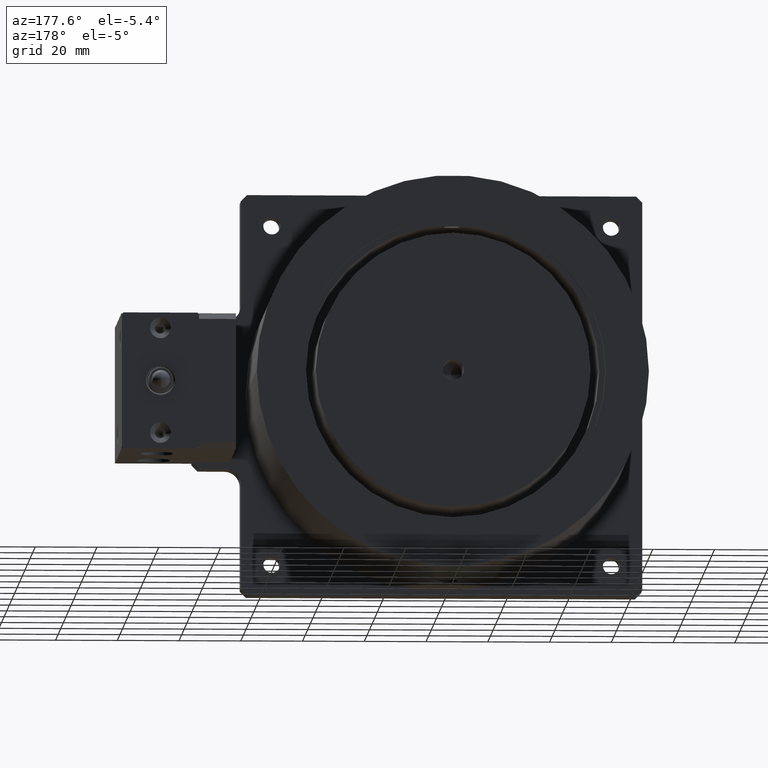
[diagram: clean part render]
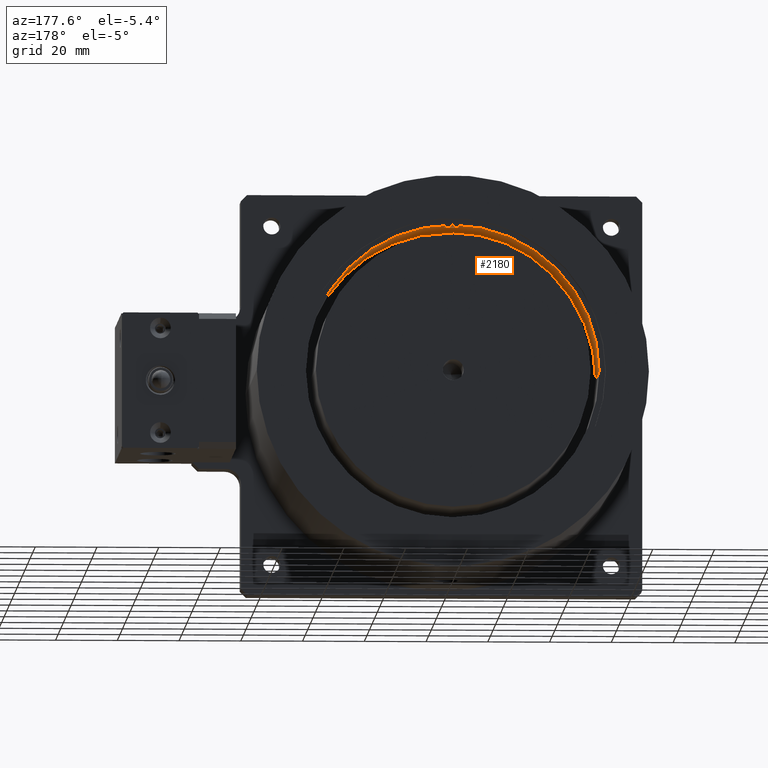
[diagram: same view with one face highlighted and labeled with its STEP entity id]
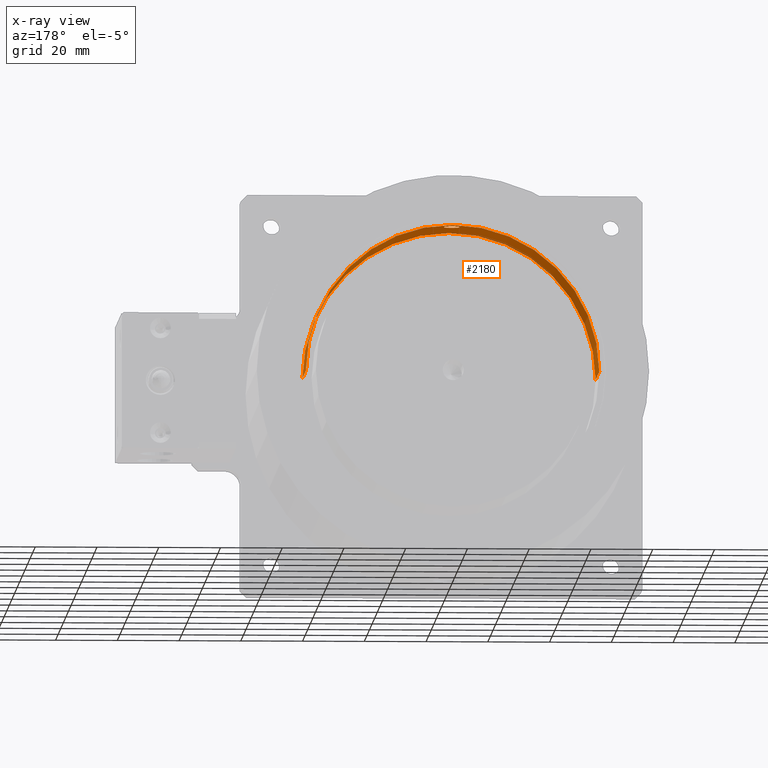
[diagram: x-ray of the same camera — body ghosted, the highlighted face saturated]
A machine part, auxiliary view. The second image highlights one B-rep face of the part: STEP entity #2180.
The next image is the same camera in x-ray: the body ghosted, the highlighted face saturated — about 5% of this face is hidden behind the body in this view.
In plain terms, the highlighted cylindrical surface (partial cylindrical patch) has radius 47.5 mm, axis along (0, 1, 0).
Its self-contained STEP definition (entity closure, byte-faithful):
#884=DIRECTION('',(0.E0,1.E0,0.E0));
#885=VECTOR('',#884,2.8E1);
#886=CARTESIAN_POINT('',(-4.75E1,-8.5E1,0.E0));
#887=LINE('',#886,#885);
#891=CARTESIAN_POINT('',(2.508413296264E0,-7.8E1,-4.743372073467E1));
#892=CARTESIAN_POINT('',(2.508413296264E0,-7.817582763835E1,-4.743372073467E1));
#893=CARTESIAN_POINT('',(2.475526233331E0,-7.851996342638E1,-4.743547884619E1));
#894=CARTESIAN_POINT('',(2.324726319821E0,-7.902910322056E1,-4.744321091931E1));
#895=CARTESIAN_POINT('',(2.085194664290E0,-7.948469693190E1,-4.745447933559E1));
#896=CARTESIAN_POINT('',(1.767072350113E0,-7.988213849062E1,-4.746756895905E1));
#897=CARTESIAN_POINT('',(1.373595345744E0,-8.021131796930E1,-4.748075846705E1));
#898=CARTESIAN_POINT('',(9.348812714220E-1,-8.044720257792E1,
-4.749151330589E1));
#899=CARTESIAN_POINT('',(4.753855434107E-1,-8.058713175158E1,
-4.749839111333E1));
#900=CARTESIAN_POINT('',(-2.557479472378E-4,-8.063462147566E1,
-4.750080987877E1));
#901=CARTESIAN_POINT('',(-4.781904371591E-1,-8.058670494261E1,
-4.749836934591E1));
#902=CARTESIAN_POINT('',(-9.373869191151E-1,-8.044604585704E1,
-4.749145833669E1));
#903=CARTESIAN_POINT('',(-1.374188237389E0,-8.021075328851E1,
-4.748073658710E1));
#904=CARTESIAN_POINT('',(-1.767020711891E0,-7.988227829570E1,
-4.746757257064E1));
#905=CARTESIAN_POINT('',(-2.086320008838E0,-7.948315693708E1,
-4.745443088980E1));
#906=CARTESIAN_POINT('',(-2.325202540855E0,-7.902758139728E1,
-4.744318595784E1));
#907=CARTESIAN_POINT('',(-2.475315337754E0,-7.852063692136E1,
-4.743548985655E1));
#908=CARTESIAN_POINT('',(-2.508413296264E0,-7.817617094847E1,
-4.743372073467E1));
#909=CARTESIAN_POINT('',(-2.508413296264E0,-7.8E1,-4.743372073467E1));
#914=CARTESIAN_POINT('',(-2.508413296264E0,-7.8E1,-4.743372073467E1));
#915=CARTESIAN_POINT('',(-2.508413296264E0,-7.782417236165E1,
-4.743372073467E1));
#916=CARTESIAN_POINT('',(-2.475526233331E0,-7.748003657362E1,
-4.743547884619E1));
#917=CARTESIAN_POINT('',(-2.324726319821E0,-7.697089677944E1,
-4.744321091931E1));
#918=CARTESIAN_POINT('',(-2.085194664290E0,-7.651530306810E1,
-4.745447933559E1));
#919=CARTESIAN_POINT('',(-1.767072350113E0,-7.611786150938E1,
-4.746756895905E1));
#920=CARTESIAN_POINT('',(-1.373595345744E0,-7.578868203070E1,
-4.748075846705E1));
#921=CARTESIAN_POINT('',(-9.348812714219E-1,-7.555279742208E1,
-4.749151330589E1));
#922=CARTESIAN_POINT('',(-4.753855434107E-1,-7.541286824842E1,
-4.749839111333E1));
#923=CARTESIAN_POINT('',(2.557479472848E-4,-7.536537852434E1,
-4.750080987877E1));
#924=CARTESIAN_POINT('',(4.781904371590E-1,-7.541329505739E1,
-4.749836934591E1));
#925=CARTESIAN_POINT('',(9.373869191151E-1,-7.555395414296E1,
-4.749145833669E1));
#926=CARTESIAN_POINT('',(1.374188237389E0,-7.578924671149E1,-4.748073658710E1));
#927=CARTESIAN_POINT('',(1.767020711891E0,-7.611772170430E1,-4.746757257064E1));
#928=CARTESIAN_POINT('',(2.086320008838E0,-7.651684306292E1,-4.745443088980E1));
#929=CARTESIAN_POINT('',(2.325202540855E0,-7.697241860272E1,-4.744318595784E1));
#930=CARTESIAN_POINT('',(2.475315337754E0,-7.747936307864E1,-4.743548985655E1));
#931=CARTESIAN_POINT('',(2.508413296264E0,-7.782382905153E1,-4.743372073467E1));
#932=CARTESIAN_POINT('',(2.508413296264E0,-7.8E1,-4.743372073467E1));
#961=CARTESIAN_POINT('',(0.E0,-8.5E1,0.E0));
#962=DIRECTION('',(0.E0,-1.E0,0.E0));
#963=DIRECTION('',(-1.E0,0.E0,0.E0));
#964=AXIS2_PLACEMENT_3D('',#961,#962,#963);
#969=DIRECTION('',(0.E0,1.E0,0.E0));
#970=VECTOR('',#969,2.8E1);
#971=CARTESIAN_POINT('',(4.75E1,-8.5E1,0.E0));
#972=LINE('',#971,#970);
#984=CARTESIAN_POINT('',(0.E0,-5.7E1,0.E0));
#985=DIRECTION('',(0.E0,-1.E0,0.E0));
#986=DIRECTION('',(-1.E0,0.E0,0.E0));
#987=AXIS2_PLACEMENT_3D('',#984,#985,#986);
#1802=CARTESIAN_POINT('',(4.75E1,-5.7E1,0.E0));
#1803=CARTESIAN_POINT('',(-4.75E1,-5.7E1,1.163414459190E-14));
#1804=VERTEX_POINT('',#1802);
#1805=VERTEX_POINT('',#1803);
#1806=CARTESIAN_POINT('',(4.75E1,-8.5E1,0.E0));
#1807=CARTESIAN_POINT('',(-4.75E1,-8.5E1,1.163414459190E-14));
#1808=VERTEX_POINT('',#1806);
#1809=VERTEX_POINT('',#1807);
#1860=VERTEX_POINT('',#891);
#1861=VERTEX_POINT('',#909);
#2160=CARTESIAN_POINT('',(0.E0,-8.5E1,0.E0));
#2161=DIRECTION('',(0.E0,-1.E0,0.E0));
#2162=DIRECTION('',(1.E0,0.E0,0.E0));
#2163=AXIS2_PLACEMENT_3D('',#2160,#2161,#2162);
#2164=CYLINDRICAL_SURFACE('',#2163,4.75E1);
#2166=ORIENTED_EDGE('',*,*,#2165,.F.);
#2168=ORIENTED_EDGE('',*,*,#2167,.T.);
#2170=ORIENTED_EDGE('',*,*,#2169,.T.);
#2172=ORIENTED_EDGE('',*,*,#2171,.F.);
#2173=EDGE_LOOP('',(#2166,#2168,#2170,#2172));
#2174=FACE_OUTER_BOUND('',#2173,.F.);
#2176=ORIENTED_EDGE('',*,*,#2175,.F.);
#2177=ORIENTED_EDGE('',*,*,#2150,.F.);
#2178=EDGE_LOOP('',(#2176,#2177));
#2179=FACE_BOUND('',#2178,.F.);
#910=B_SPLINE_CURVE_WITH_KNOTS('',3,(#891,#892,#893,#894,#895,#896,#897,#898,
#899,#900,#901,#902,#903,#904,#905,#906,#907,#908,#909),.UNSPECIFIED.,.F.,.F.,
(4,1,1,1,1,1,1,1,1,1,1,1,1,1,1,1,4),(0.E0,6.25E-2,1.25E-1,1.875E-1,2.5E-1,
3.125E-1,3.75E-1,4.375E-1,5.E-1,5.625E-1,6.25E-1,6.875E-1,7.5E-1,8.125E-1,
8.75E-1,9.375E-1,1.E0),.UNSPECIFIED.);
#933=B_SPLINE_CURVE_WITH_KNOTS('',3,(#914,#915,#916,#917,#918,#919,#920,#921,
#922,#923,#924,#925,#926,#927,#928,#929,#930,#931,#932),.UNSPECIFIED.,.F.,.F.,
(4,1,1,1,1,1,1,1,1,1,1,1,1,1,1,1,4),(0.E0,6.25E-2,1.25E-1,1.875E-1,2.5E-1,
3.125E-1,3.75E-1,4.375E-1,5.E-1,5.625E-1,6.25E-1,6.875E-1,7.5E-1,8.125E-1,
8.75E-1,9.375E-1,1.E0),.UNSPECIFIED.);
#965=CIRCLE('',#964,4.75E1);
#988=CIRCLE('',#987,4.75E1);
#2150=EDGE_CURVE('',#1861,#1860,#933,.T.);
#2165=EDGE_CURVE('',#1809,#1808,#965,.T.);
#2167=EDGE_CURVE('',#1809,#1805,#887,.T.);
#2169=EDGE_CURVE('',#1805,#1804,#988,.T.);
#2171=EDGE_CURVE('',#1808,#1804,#972,.T.);
#2175=EDGE_CURVE('',#1860,#1861,#910,.T.);
#2180=ADVANCED_FACE('',(#2174,#2179),#2164,.F.);